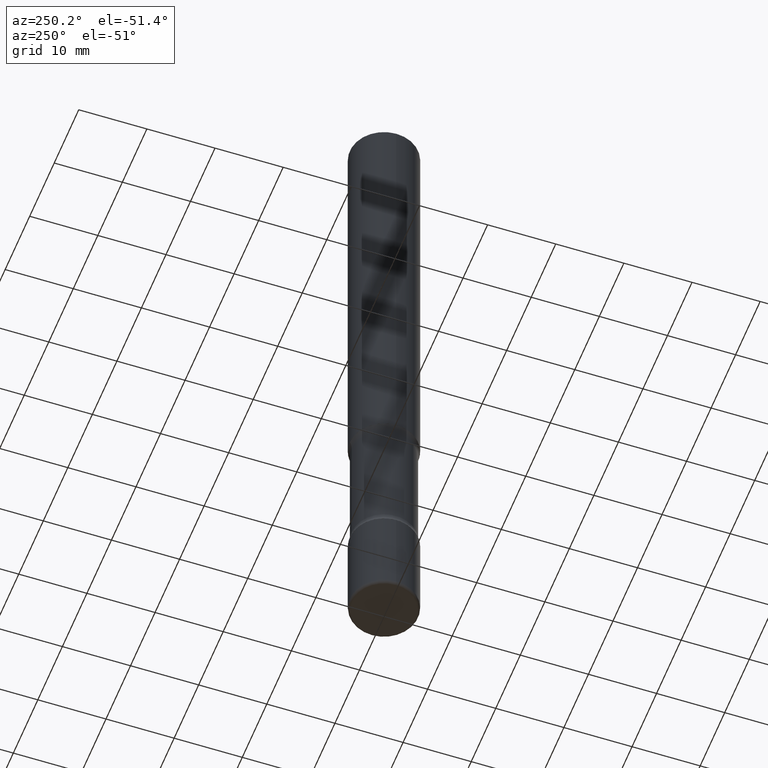
[diagram: clean part render]
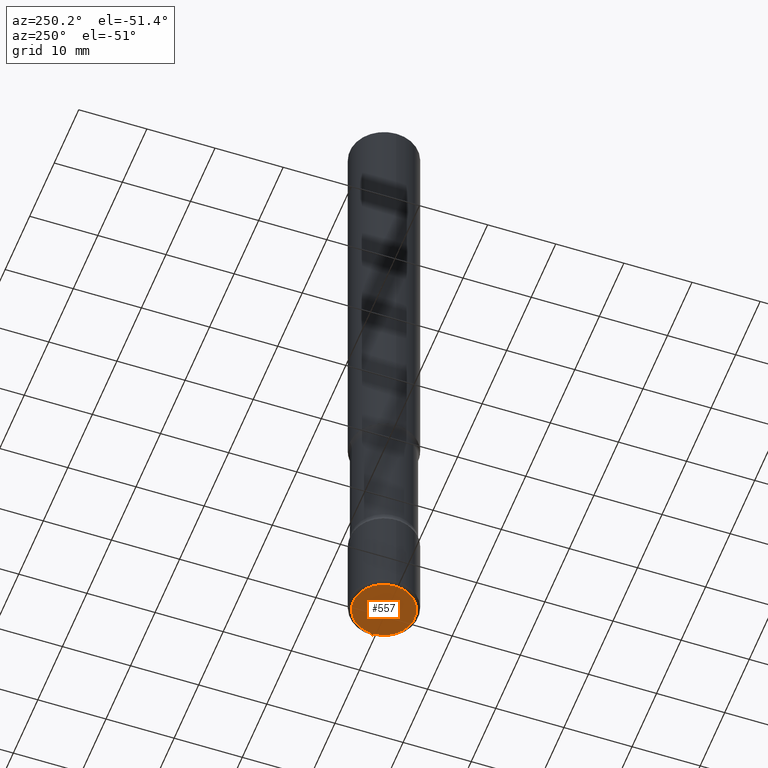
[diagram: same view with one face highlighted and labeled with its STEP entity id]
A machine part, auxiliary view. The second image highlights one B-rep face of the part: STEP entity #557.
In plain terms, the highlighted planar face has unit normal (0, -0, -1).
Its self-contained STEP definition (entity closure, byte-faithful):
#10 = DIRECTION ( 'NONE',  ( -2.445468806185136597E-29, 3.491481338843145583E-15, 1.000000000000000000 ) ) ;
#14 = CARTESIAN_POINT ( 'NONE',  ( 9.627810689950883669E-29, -1.374596203102546341E-14, -3.937000000000000277 ) ) ;
#20 = VERTEX_POINT ( 'NONE', #460 ) ;
#21 = CARTESIAN_POINT ( 'NONE',  ( 9.627810689950883669E-29, -1.374596203102546341E-14, -3.937000000000000277 ) ) ;
#36 = EDGE_LOOP ( 'NONE', ( #45, #150 ) ) ;
#45 = ORIENTED_EDGE ( 'NONE', *, *, #265, .F. ) ;
#97 = AXIS2_PLACEMENT_3D ( 'NONE', #21, #401, #195 ) ;
#99 = DIRECTION ( 'NONE',  ( 2.438088387897960049E-29, -3.491481338843145188E-15, -1.000000000000000000 ) ) ;
#114 = CARTESIAN_POINT ( 'NONE',  ( 9.627810689950883669E-29, -1.374596203102546341E-14, -3.937000000000000277 ) ) ;
#124 = EDGE_CURVE ( 'NONE', #527, #20, #269, .T. ) ;
#150 = ORIENTED_EDGE ( 'NONE', *, *, #124, .F. ) ;
#174 = CIRCLE ( 'NONE', #231, 0.1771500000000001962 ) ;
#195 = DIRECTION ( 'NONE',  ( 1.000000000000000000, -6.982962677686265133E-15, 0.000000000000000000 ) ) ;
#200 = AXIS2_PLACEMENT_3D ( 'NONE', #14, #99, #220 ) ;
#220 = DIRECTION ( 'NONE',  ( -1.000000000000000000, 6.982962677686265922E-15, -4.876176775795935793E-29 ) ) ;
#231 = AXIS2_PLACEMENT_3D ( 'NONE', #114, #10, #356 ) ;
#265 = EDGE_CURVE ( 'NONE', #20, #527, #174, .T. ) ;
#269 = CIRCLE ( 'NONE', #97, 0.1771500000000001962 ) ;
#356 = DIRECTION ( 'NONE',  ( 1.000000000000000000, -6.982962677686265133E-15, 0.000000000000000000 ) ) ;
#361 = FACE_OUTER_BOUND ( 'NONE', #36, .T. ) ;
#389 = CARTESIAN_POINT ( 'NONE',  ( -0.1771500000000001962, -1.238285602396647324E-14, -3.937000000000000277 ) ) ;
#401 = DIRECTION ( 'NONE',  ( -2.445468806185136597E-29, 3.491481338843145583E-15, 1.000000000000000000 ) ) ;
#460 = CARTESIAN_POINT ( 'NONE',  ( 0.1771500000000001962, -1.498299386937758739E-14, -3.937000000000000277 ) ) ;
#475 = PLANE ( 'NONE',  #200 ) ;
#527 = VERTEX_POINT ( 'NONE', #389 ) ;
#557 = ADVANCED_FACE ( 'NONE', ( #361 ), #475, .T. ) ;